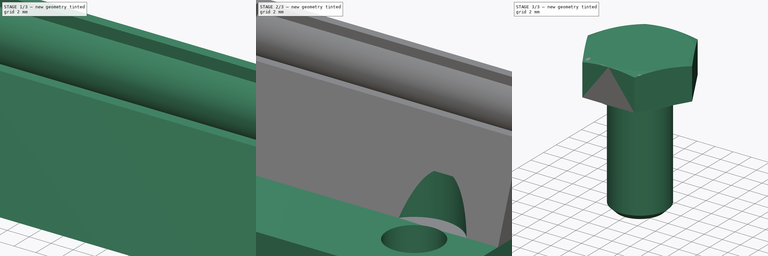
[diagram: build sequence overview — one tinted view per stage of 3, left to right]
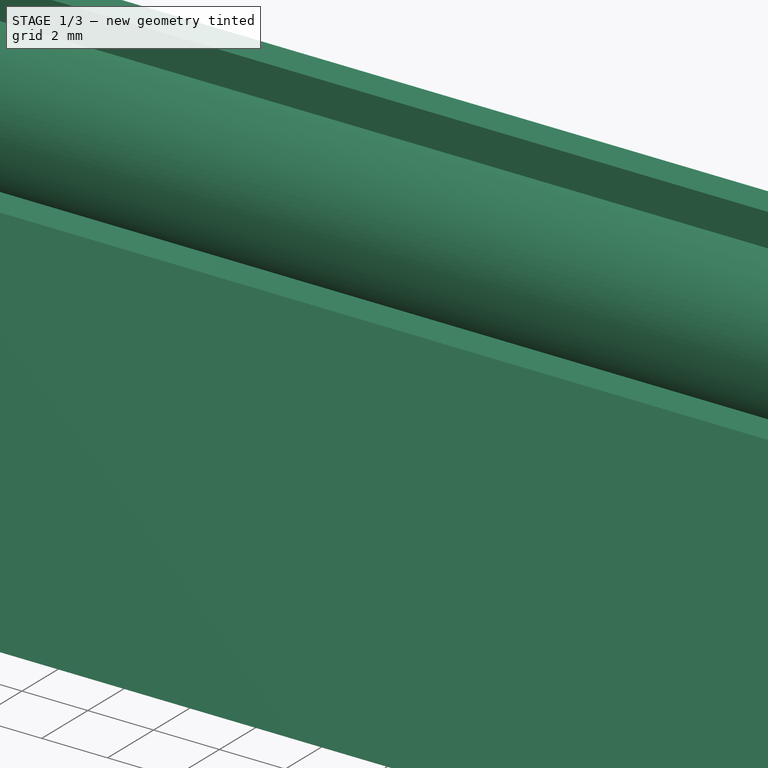
[diagram: stage 1 of 3 — iso view after this stage's code; geometry added in this stage tinted green]
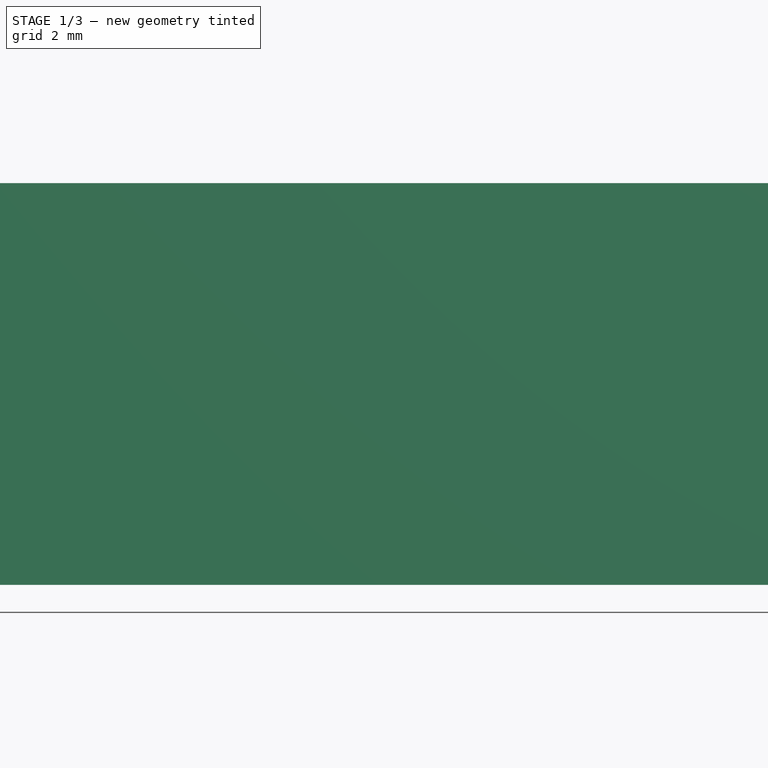
[diagram: stage 1 of 3 — front view after this stage's code; geometry added in this stage tinted green]
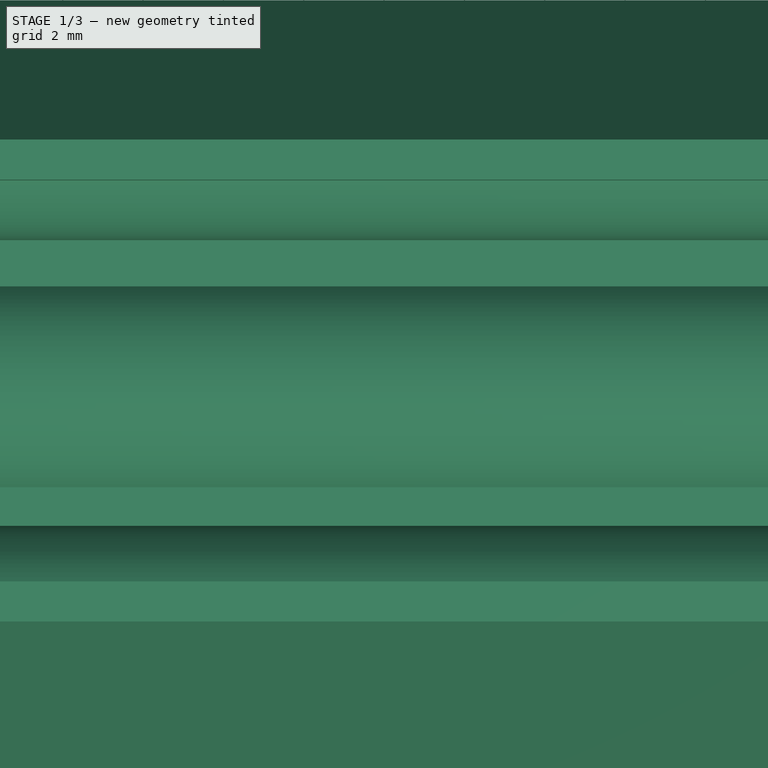
[diagram: stage 1 of 3 — top view after this stage's code; geometry added in this stage tinted green]
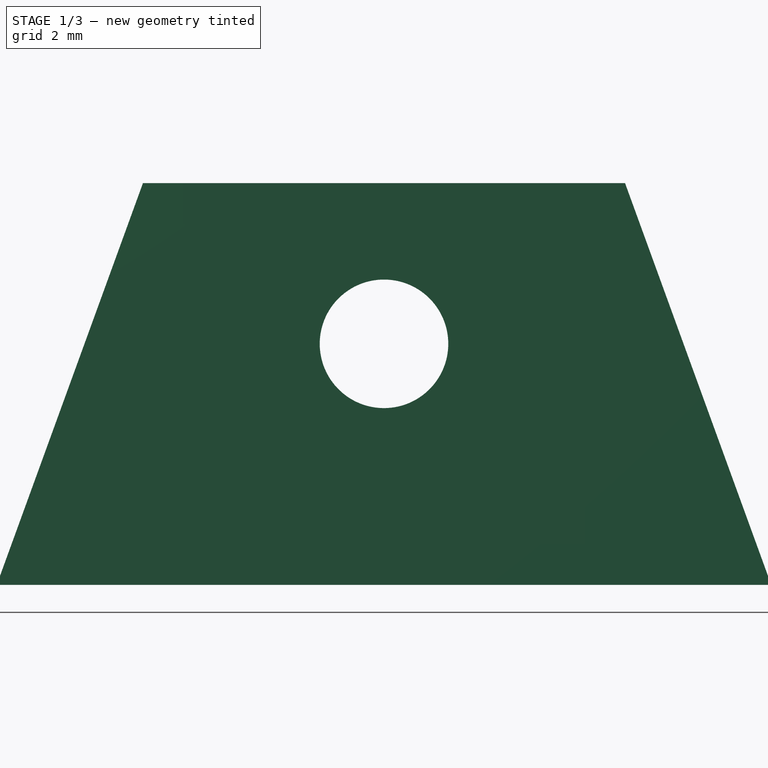
[diagram: stage 1 of 3 — right view after this stage's code; geometry added in this stage tinted green]
FCSTD DOCUMENT  (FreeCAD 0.19R24344 (Git))
Label: MicroManipulator_Rail_bottom
Comment: Bottom rail for the MicroManipulator. Additional material for stability and 4 mounting holes with imperial distance for assembly.
License: Creative Commons Attribution-NonCommercial-ShareAlike
LicenseURL: http://creativecommons.org/licenses/by-nc-sa/4.0/
objects: PartDesign::CoordinateSystem×6, Sketcher::SketchObject×5, PartDesign::Pad×3, PartDesign::Pocket×2, PartDesign::Body×1, Part::FeaturePython×1
note: 23 computed .brp shape members not serialized (recipe doc carries the construction recipe); baked Part::Feature solids carry a one-line shape summary decoded from their .brp

FEATURE [Sketcher::SketchObject] Sketch
  FullyConstrained = true
  MapMode = 5
  Placement = pos=(0,0,0) rot=(0.57735,0.57735,0.57735;2.0944rad)
  Support = -> [YZ_Plane]
  sketch-geometry (14):
    g0: LineSegment StartX=-5 StartY=8 StartZ=0 EndX=-5 EndY=9 EndZ=0
    g1: LineSegment StartX=5 StartY=9 StartZ=0 EndX=5 EndY=8 EndZ=0
    g2: LineSegment StartX=5 StartY=3 StartZ=0 EndX=5 EndY=-4e-16 EndZ=0
    g3: LineSegment StartX=5 StartY=-4e-16 StartZ=0 EndX=2.5 EndY=-4e-16 EndZ=0
    g4: LineSegment StartX=-2.5 StartY=0 StartZ=0 EndX=-5 EndY=0 EndZ=0
    g5: LineSegment StartX=-5 StartY=0 StartZ=0 EndX=-5 EndY=3 EndZ=0
    g6: ArcOfCircle CenterX=4e-16 CenterY=-1.44338 CenterZ=0 NormalX=0 NormalY=0 NormalZ=1 AngleXU=0 Radius=2.88675 StartAngle=0.523599 EndAngle=2.61799
    g7: ArcOfCircle CenterX=-6.44338 CenterY=5.5 CenterZ=0 NormalX=0 NormalY=0 NormalZ=1 AngleXU=0 Radius=2.88675 StartAngle=5.23599 EndAngle=7.33038
    g8: ArcOfCircle CenterX=6.44338 CenterY=5.5 CenterZ=0 NormalX=0 NormalY=0 NormalZ=1 AngleXU=0 Radius=2.88675 StartAngle=2.0944 EndAngle=4.18879
    g9: LineSegment StartX=-5 StartY=9 StartZ=0 EndX=-6 EndY=9 EndZ=0
    g10: LineSegment StartX=-6 StartY=9 StartZ=0 EndX=-9.6397 EndY=-1 EndZ=0
    g11: LineSegment StartX=-9.6397 StartY=-1 StartZ=0 EndX=9.6397 EndY=-1 EndZ=0
    g12: LineSegment StartX=9.6397 StartY=-1 StartZ=0 EndX=6 EndY=9 EndZ=0
    g13: LineSegment StartX=6 StartY=9 StartZ=0 EndX=5 EndY=9 EndZ=0
  constraints (44):
    c: Vertical(g0)
    c: Vertical(g1)
    c: Vertical(g2)
    c: Coincident(g3,g2)
    c: Horizontal(g3)
    c: Horizontal(g4)
    c: Coincident(g5,g4)
    c: Vertical(g5)
    c: Coincident(g6,g4)
    c: Coincident(g6,g3)
    c: Coincident(g7,g5)
    c: Coincident(g7,g0)
    c: Coincident(g8,g2)
    c: Coincident(g8,g1)
    c: Vertical(g0,g5)
    c: Vertical(g1,g2)
    c: Angle(g7) = 2.0944
    c: Angle(g8) = 2.0944
    c: Angle(g6) = 2.0944
    c: Distance(g4,g3) = 5
    c: Distance(g5,g0) = 5
    c: Distance(g1,g2) = 5
    c: Horizontal(g0,g1)
    c: Symmetric(g1,g0,g-2)
    c: PointOnObject(g2,g-1)
    c: Symmetric(g3,g4,g-2)
    c: Distance(g0,g4) = 9
    c: Distance(g5,g4) = 3
    c: Coincident(g9,g0)
    c: Horizontal(g9)
    c: Coincident(g10,g9)
    c: Vertical(g10)
    c: Coincident(g11,g10)
    c: Coincident(g12,g11)
    c: Vertical(g12)
    c: Coincident(g13,g12)
    c: Horizontal(g13)
    c: Distance(g9) = 1
    c: Distance(g13) = 1
    c: Coincident(g13,g1)
    c: DistanceY(g11,g2) = 1
    c: DistanceX(g4,g2) = 10
    c: Symmetric(g10,g11,g-2)
    c: Angle(g12) = 1.91986
FEATURE [PartDesign::Pad] Pad
  Direction = (1,1,1)
  Length = 40
  Length2 = 100
  Placement = pos=(0,0,0) rot=(0.57735,0.57735,0.57735;2.0944rad)
  Profile = -> Sketch
  Type = 0
FEATURE [Sketcher::SketchObject] Sketch001
  ExternalGeometry = -> [Pad]
  FullyConstrained = true
  MapMode = 5
  Placement = pos=(0,0,0) rot=(0.57735,0.57735,-0.57735;4.18879rad)
  Support = -> [Pad]
  sketch-geometry (5):
    g0: LineSegment StartX=-9.6397 StartY=1 StartZ=0 EndX=9.6397 EndY=1 EndZ=0
    g1: LineSegment StartX=9.6397 StartY=1 StartZ=0 EndX=6 EndY=-9 EndZ=0
    g2: LineSegment StartX=6 StartY=-9 StartZ=0 EndX=-6 EndY=-9 EndZ=0
    g3: LineSegment StartX=-6 StartY=-9 StartZ=0 EndX=-9.6397 EndY=1 EndZ=0
    g4: Circle CenterX=0 CenterY=-5 CenterZ=0 NormalX=0 NormalY=0 NormalZ=1 AngleXU=0 Radius=1.6
  constraints (11):
    c: Coincident(g0,g1)
    c: Coincident(g1,g2)
    c: Coincident(g2,g3)
    c: Coincident(g3,g0)
    c: Coincident(g0,g-3)
    c: Coincident(g1,g-4)
    c: PointOnObject(g4,g-2)
    c: Diameter(g4) = 3.2
    c: DistanceY(g4,g-1) = 5
    c: Coincident(g2,g-3)
    c: Coincident(g0,g-4)
FEATURE [PartDesign::Pad] Pad001
  BaseFeature = -> Pad
  Direction = (1,1,1)
  Length = 2
  Length2 = 100
  Placement = pos=(0,0,0) rot=(0.57735,0.57735,0.57735;2.0944rad)
  Profile = -> Sketch001
  Reversed = true
  Type = 0
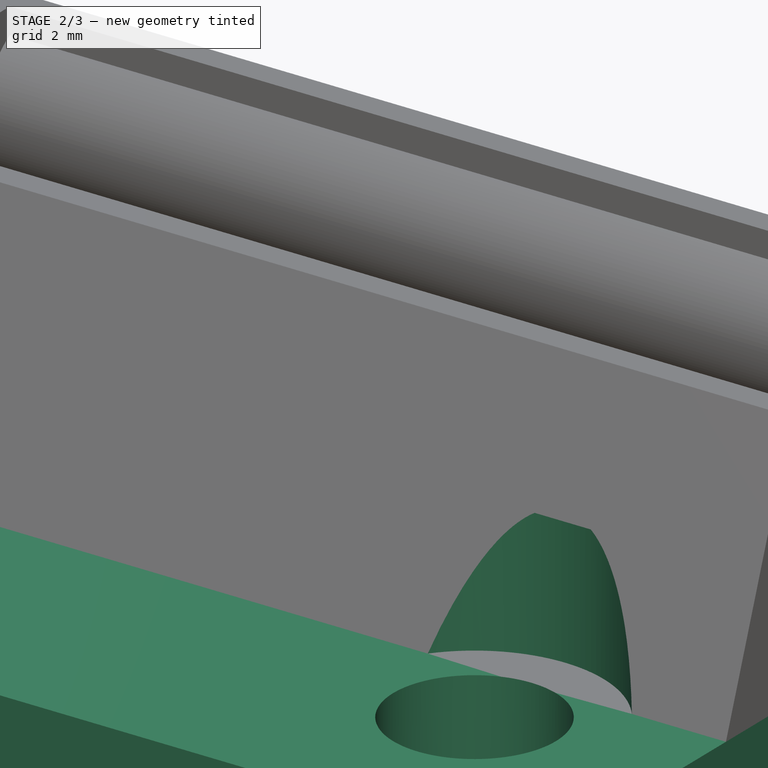
[diagram: stage 2 of 3 — iso view after this stage's code; geometry added in this stage tinted green]
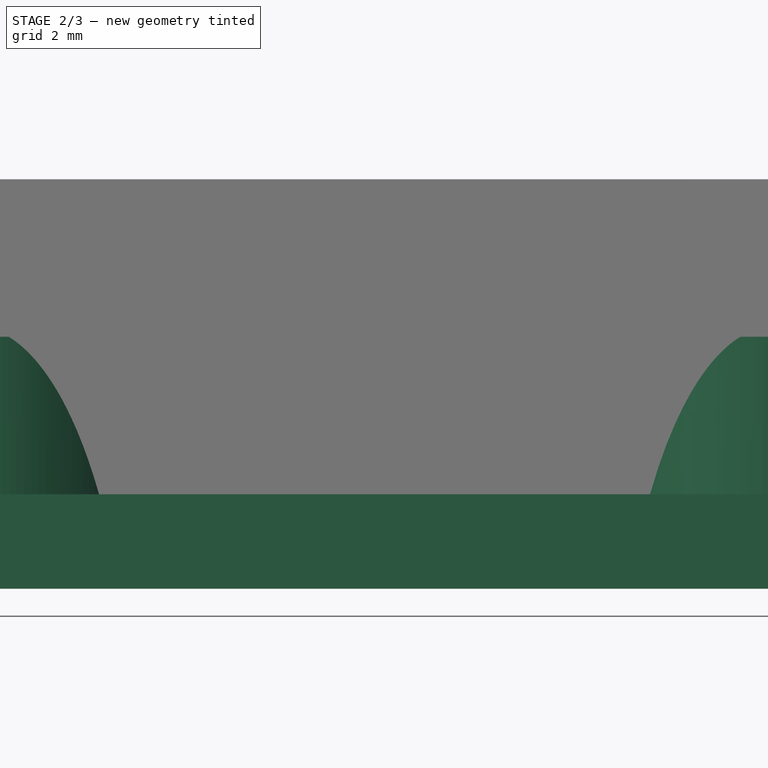
[diagram: stage 2 of 3 — front view after this stage's code; geometry added in this stage tinted green]
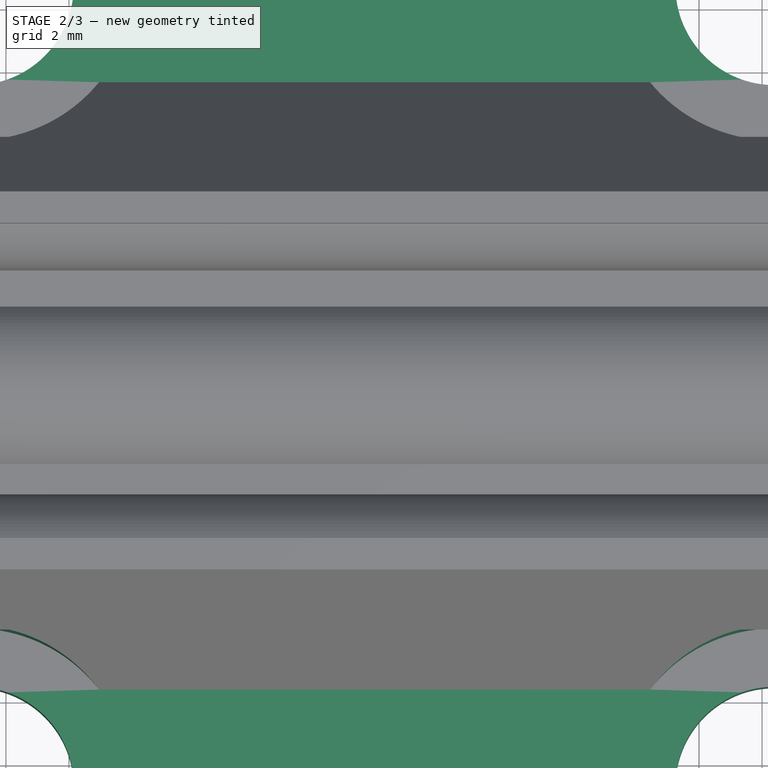
[diagram: stage 2 of 3 — top view after this stage's code; geometry added in this stage tinted green]
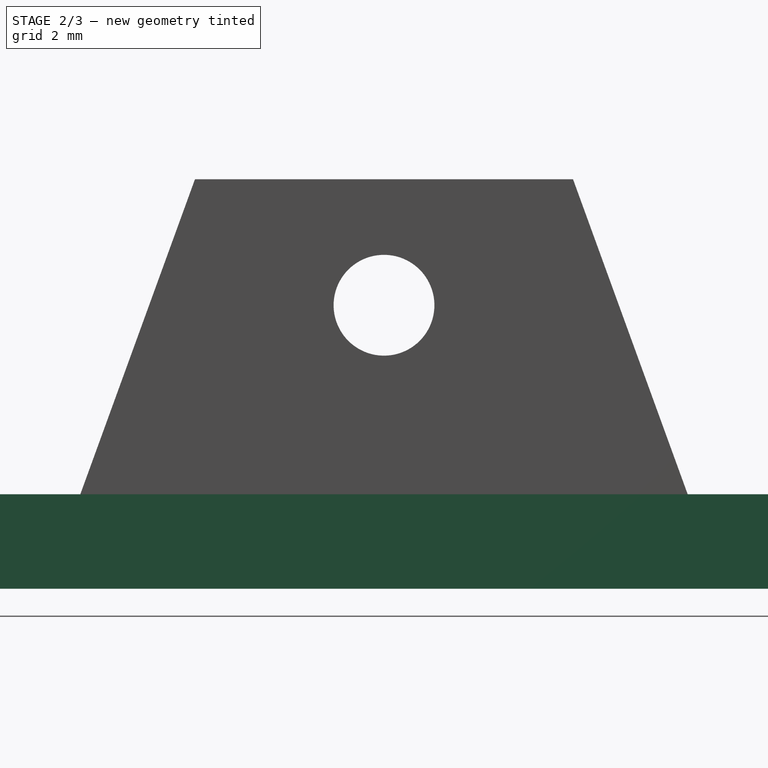
[diagram: stage 2 of 3 — right view after this stage's code; geometry added in this stage tinted green]
FEATURE [Sketcher::SketchObject] Sketch002
  FullyConstrained = true
  MapMode = 5
  Placement = pos=(3e-16,-4e-16,-1) rot=(0.707107,0.707107,0;3.14159rad)
  Support = -> [Pad001]
  sketch-geometry (12):
    g0: Circle CenterX=-12.7 CenterY=32.4 CenterZ=0 NormalX=0 NormalY=0 NormalZ=1 AngleXU=0 Radius=3.15
    g1: Circle CenterX=12.7 CenterY=32.4 CenterZ=0 NormalX=0 NormalY=0 NormalZ=1 AngleXU=0 Radius=3.15
    g2: Circle CenterX=-12.7 CenterY=7 CenterZ=0 NormalX=0 NormalY=0 NormalZ=1 AngleXU=0 Radius=3.15
    g3: Circle CenterX=12.7 CenterY=7 CenterZ=0 NormalX=0 NormalY=0 NormalZ=1 AngleXU=0 Radius=3.15
    g4: LineSegment StartX=-16 StartY=40 StartZ=0 EndX=16 EndY=40 EndZ=0
    g5: LineSegment StartX=20 StartY=36 StartZ=0 EndX=20 EndY=4 EndZ=0
    g6: LineSegment StartX=16 StartY=0 StartZ=0 EndX=-16 EndY=0 EndZ=0
    g7: LineSegment StartX=-20 StartY=4 StartZ=0 EndX=-20 EndY=36 EndZ=0
    g8: ArcOfCircle CenterX=-16 CenterY=36 CenterZ=0 NormalX=0 NormalY=0 NormalZ=1 AngleXU=0 Radius=4 StartAngle=1.5708 EndAngle=3.14159
    g9: ArcOfCircle CenterX=-16 CenterY=4 CenterZ=0 NormalX=0 NormalY=0 NormalZ=1 AngleXU=0 Radius=4 StartAngle=3.14159 EndAngle=4.71239
    g10: ArcOfCircle CenterX=16 CenterY=4 CenterZ=0 NormalX=0 NormalY=0 NormalZ=1 AngleXU=0 Radius=4 StartAngle=4.71239 EndAngle=6.28319
    g11: ArcOfCircle CenterX=16 CenterY=36 CenterZ=0 NormalX=0 NormalY=0 NormalZ=1 AngleXU=0 Radius=4 StartAngle=-9e-16 EndAngle=1.5708
  constraints (30):
    c: Diameter(g2) = 6.3
    c: Equal(g2,g3)
    c: Equal(g3,g1)
    c: Equal(g1,g0)
    c: DistanceX(g0,g1) = 25.4
    c: DistanceY(g3,g1) = 25.4
    c: Vertical(g1,g3)
    c: Vertical(g0,g2)
    c: Horizontal(g1,g0)
    c: Symmetric(g2,g3,g-2)
    c: Horizontal(g4)
    c: Vertical(g5)
    c: Vertical(g7)
    c: Tangent(g4,g8) = 1.5708
    c: Tangent(g7,g8) = 1.5708
    c: Tangent(g7,g9) = 1.5708
    c: Tangent(g6,g9) = 1.5708
    c: Tangent(g6,g10) = 1.5708
    c: Tangent(g5,g10) = 1.5708
    c: Tangent(g5,g11) = 1.5708
    c: Tangent(g4,g11) = 1.5708
    c: DistanceY(g6,g4) = 40
    c: DistanceX(g7,g5) = 40
    c: Horizontal(g6)
    c: Symmetric(g5,g7,g-2)
    c: Diameter(g11) = 8
    c: Diameter(g9) = 8
    c: Diameter(g10) = 8
    c: DistanceY(g6,g2) = 7
    c: PointOnObject(g6,g-1)
FEATURE [PartDesign::Pad] Pad002
  BaseFeature = -> Pad001
  Direction = (1,1,1)
  Length = 3
  Length2 = 100
  Placement = pos=(0,0,0) rot=(0.57735,0.57735,0.57735;2.0944rad)
  Profile = -> Sketch002
  Type = 0
FEATURE [Sketcher::SketchObject] Sketch003
  ExternalGeometry = -> [Pad002]
  FullyConstrained = true
  MapMode = 5
  Placement = pos=(7e-16,-7e-16,-1) rot=(0,0,-1;1.5708rad)
  Support = -> [Pad002]
  sketch-geometry (4):
    g0: Circle CenterX=-12.7 CenterY=32.4 CenterZ=0 NormalX=0 NormalY=0 NormalZ=1 AngleXU=0 Radius=5
    g1: Circle CenterX=12.7 CenterY=32.4 CenterZ=0 NormalX=0 NormalY=0 NormalZ=1 AngleXU=0 Radius=5
    g2: Circle CenterX=12.7 CenterY=7 CenterZ=0 NormalX=0 NormalY=0 NormalZ=1 AngleXU=0 Radius=5
    g3: Circle CenterX=-12.7 CenterY=7 CenterZ=0 NormalX=0 NormalY=0 NormalZ=1 AngleXU=0 Radius=5
  constraints (8):
    c: Coincident(g0,g-5)
    c: Coincident(g1,g-4)
    c: Coincident(g2,g-6)
    c: Coincident(g3,g-3)
    c: Equal(g3,g0)
    c: Equal(g0,g1)
    c: Equal(g1,g2)
    c: Diameter(g3) = 10
FEATURE [PartDesign::Pocket] Pocket
  BaseFeature = -> Pad002
  Length = 5
  Length2 = 100
  Placement = pos=(0,0,0) rot=(0.57735,0.57735,0.57735;2.0944rad)
  Profile = -> Sketch003
  Reversed = true
  Type = 0
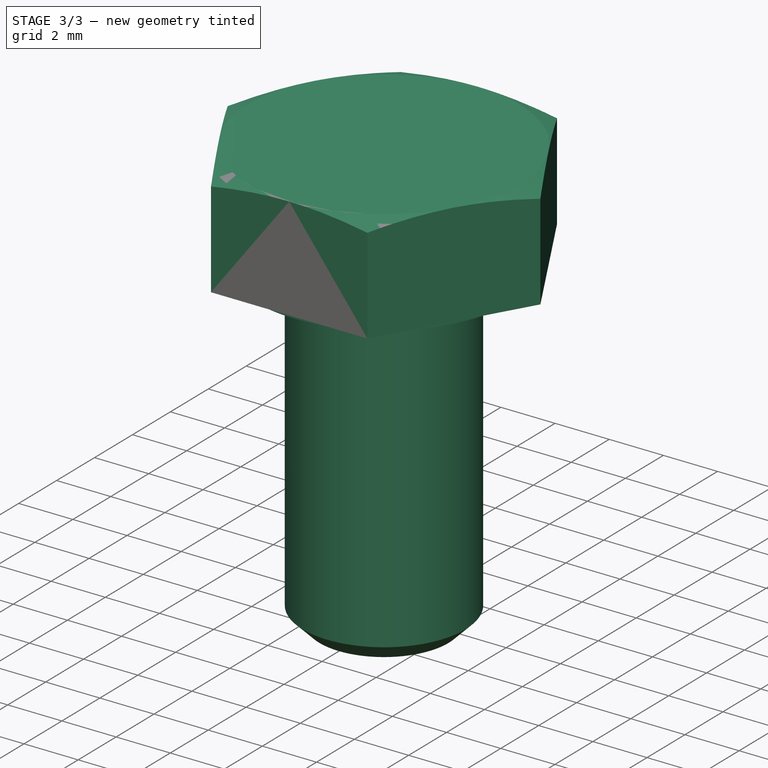
[diagram: stage 3 of 3 — iso view after this stage's code; geometry added in this stage tinted green]
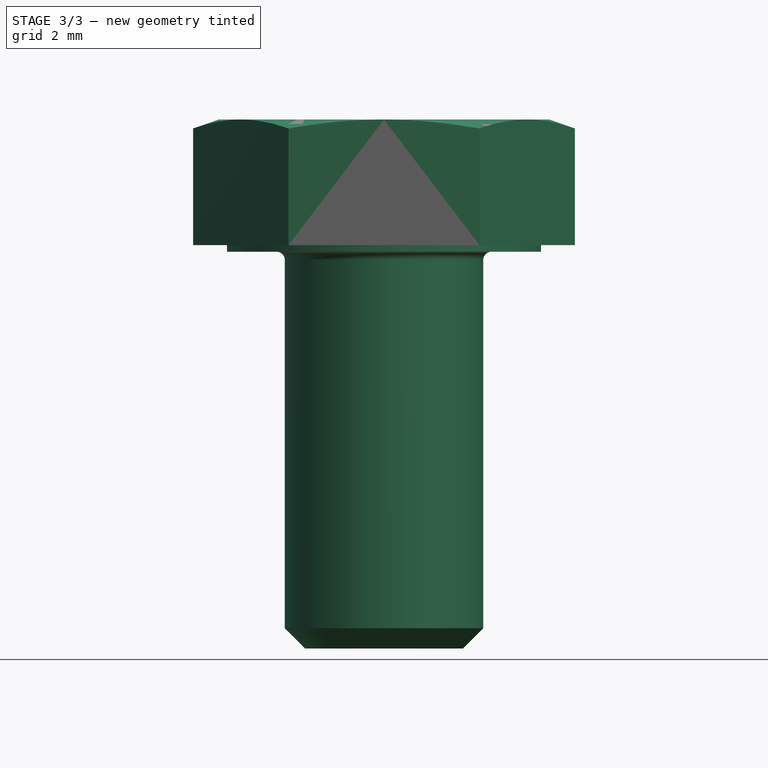
[diagram: stage 3 of 3 — front view after this stage's code; geometry added in this stage tinted green]
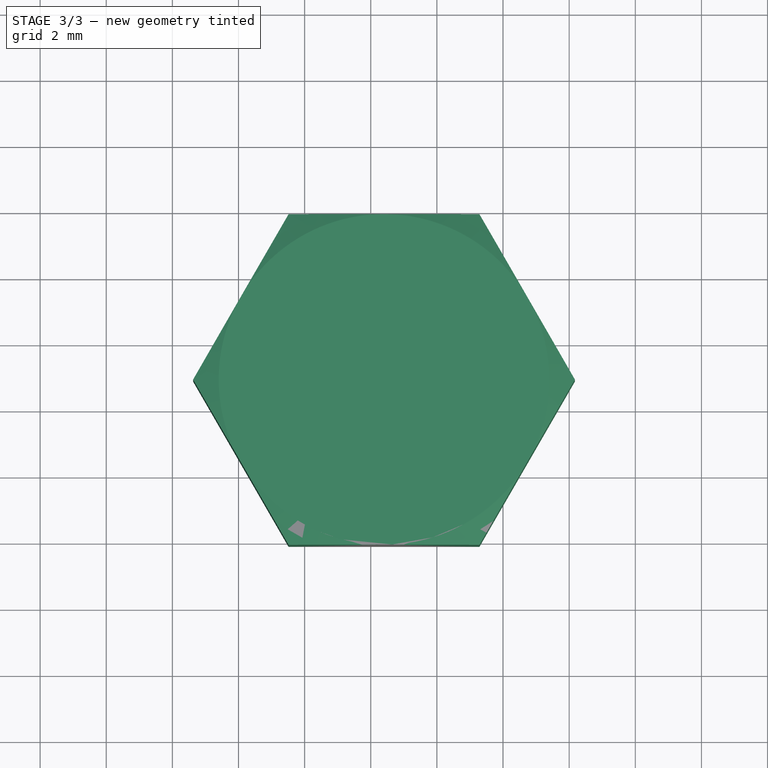
[diagram: stage 3 of 3 — top view after this stage's code; geometry added in this stage tinted green]
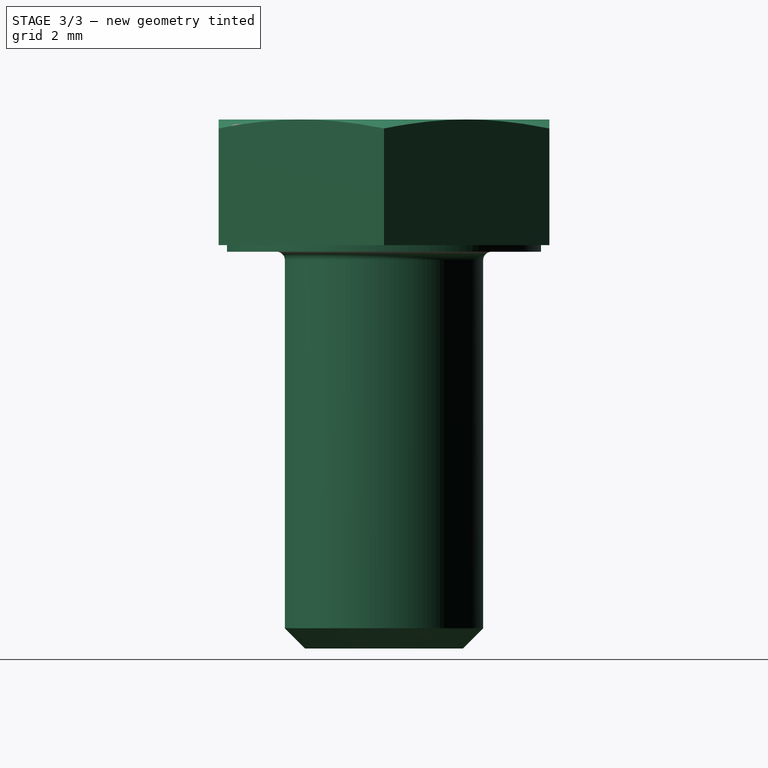
[diagram: stage 3 of 3 — right view after this stage's code; geometry added in this stage tinted green]
FEATURE [Sketcher::SketchObject] Sketch004
  ExternalGeometry = -> [Pocket]
  FullyConstrained = true
  MapMode = 5
  Placement = pos=(-2.2e-15,-5,1.1e-15) rot=(0.57735,0.57735,0.57735;4.18879rad)
  Support = -> [Pocket]
  sketch-geometry (4):
    g0: LineSegment StartX=9 StartY=2 StartZ=0 EndX=3 EndY=2 EndZ=0
    g1: LineSegment StartX=3 StartY=2 StartZ=0 EndX=3 EndY=7 EndZ=0
    g2: LineSegment StartX=3 StartY=7 StartZ=0 EndX=9 EndY=7 EndZ=0
    g3: LineSegment StartX=9 StartY=7 StartZ=0 EndX=9 EndY=2 EndZ=0
  constraints (11):
    c: Coincident(g0,g1)
    c: Coincident(g1,g2)
    c: Coincident(g2,g3)
    c: Coincident(g3,g0)
    c: Horizontal(g0)
    c: Horizontal(g2)
    c: Vertical(g1)
    c: Vertical(g3)
    c: Coincident(g0,g-3)
    c: Distance(g3) = 5
    c: Distance(g0) = 6
FEATURE [PartDesign::Pocket] Pocket001
  BaseFeature = -> Pocket
  Length = 34
  Length2 = 100
  Midplane = true
  Placement = pos=(0,0,0) rot=(0.57735,0.57735,0.57735;2.0944rad)
  Profile = -> Sketch004
  Type = 0
FEATURE [PartDesign::CoordinateSystem] Bottom_Cage_LCS  label="LCS_Screw"
  AttacherType = Attacher::AttachEngine3D
  MapMode = 45
  Placement = pos=(-1e-15,7.6e-15,5) rot=(0.57735,0.57735,0.57735;2.0944rad)
  Support = -> [Pocket001]
FEATURE [PartDesign::CoordinateSystem] Bottom_Mount_Edge
  AttacherType = Attacher::AttachEngine3D
  MapMode = 45
  Placement = pos=(32.4,12.7,-4) rot=(0,0,1;1.5708rad)
  Support = -> [Pocket001]
FEATURE [PartDesign::CoordinateSystem] LCS_Fasten_1
  AttacherType = Attacher::AttachEngine3D
  MapMode = 45
  Placement = pos=(32.4,12.9572,-1) rot=(0,0,1;1.5708rad)
  Support = -> [Pocket001]
FEATURE [PartDesign::CoordinateSystem] LCS_Fasten_2
  AttacherType = Attacher::AttachEngine3D
  MapMode = 45
  Placement = pos=(7,12.9572,-1) rot=(0,0,1;1.5708rad)
  Support = -> [Pocket001]
FEATURE [PartDesign::CoordinateSystem] LCS_Fasten_3
  AttacherType = Attacher::AttachEngine3D
  MapMode = 45
  Placement = pos=(7,-12.9572,-1) rot=(0,0,1;1.5708rad)
  Support = -> [Pocket001]
FEATURE [PartDesign::CoordinateSystem] LCS_Fasten_4
  AttacherType = Attacher::AttachEngine3D
  MapMode = 45
  Placement = pos=(32.4,-12.9572,-1) rot=(0,0,1;1.5708rad)
  Support = -> [Pocket001]
FEATURE [PartDesign::Body] Body  label="Rail_bottom"
  Group = -> [Pad,Sketch001,Pad001,Sketch002,Pad002,Sketch003,Pocket,Sketch004,Pocket001,Bottom_Cage_LCS,Bottom_Mount_Edge,LCS_Fasten_1,LCS_Fasten_2,LCS_Fasten_3,LCS_Fasten_4]
  Origin = -> Origin
  Tip = -> Pocket001
FEATURE [Part::FeaturePython] Screw  label="M6x12-Screw"  # Fasteners workbench fastener (typed FeaturePython)
  Placement = pos=(32.4,12.7,-1) rot=(0,0,1;0rad)
  baseObject = -> Body [Edge116]
  diameter = 8
  invert = true
  length = 0
  lengthCustom = 12
  matchOuter = true
  offset = 0
  thread = false
  type = 27
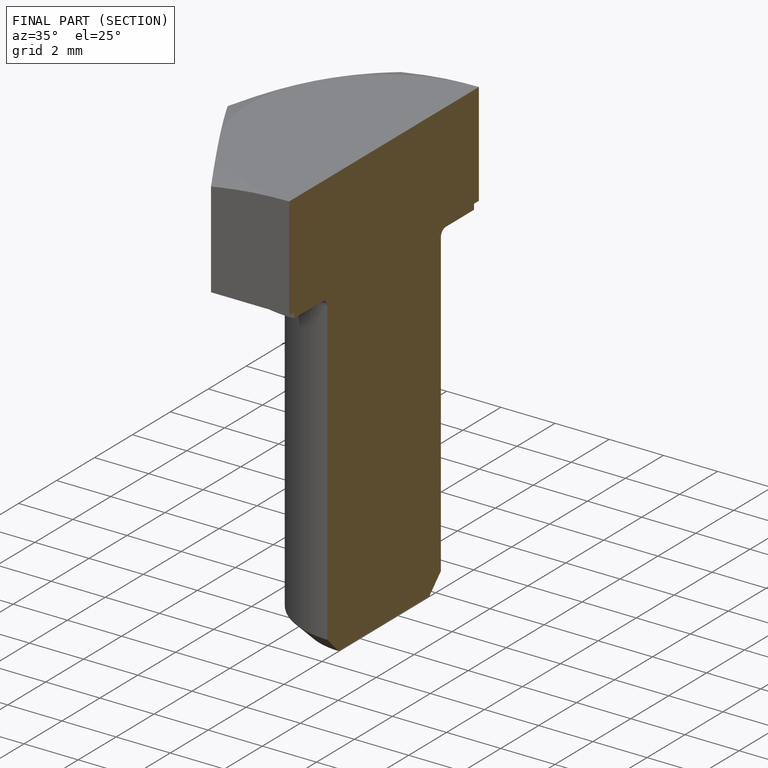
[diagram: finished part — half-section view (interior)]
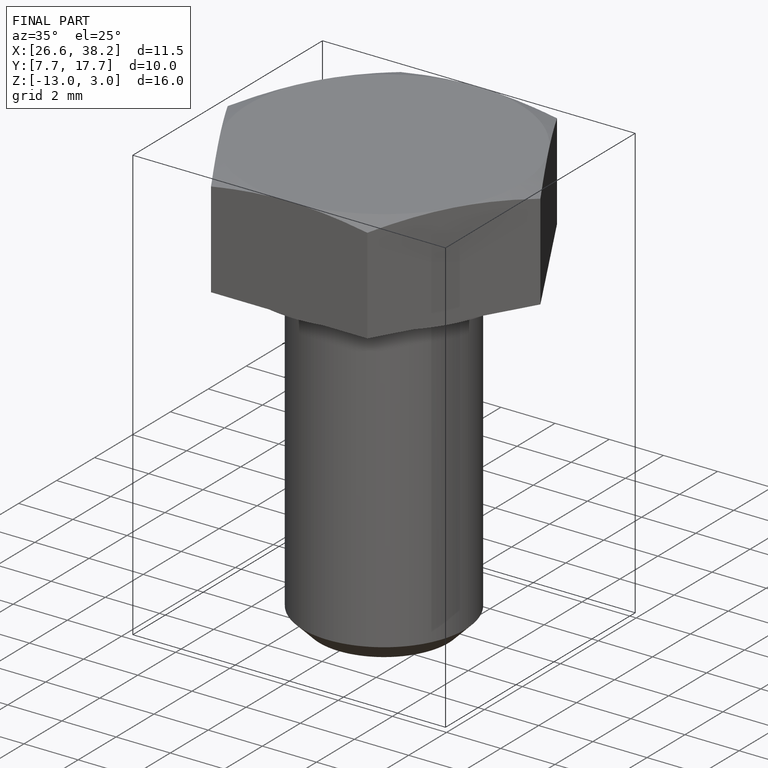
[diagram: finished part — iso view with bounding-box wireframe]
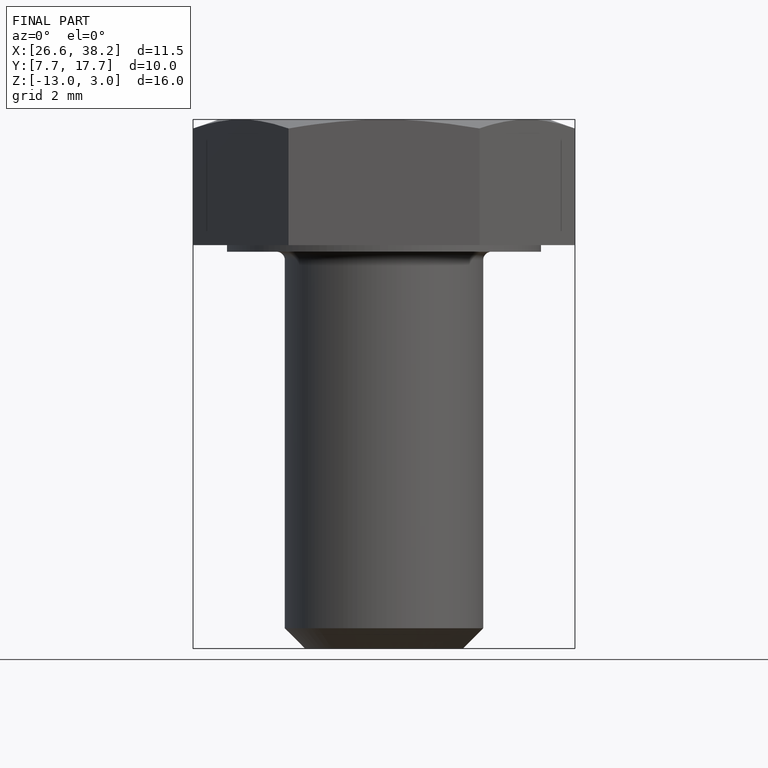
[diagram: finished part — front view with bounding-box wireframe]
